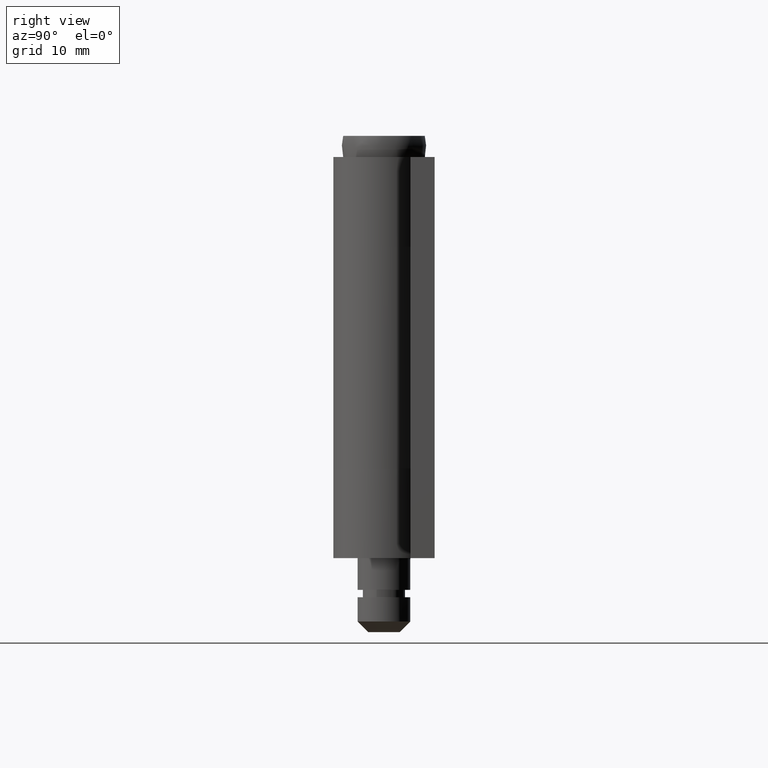
[diagram: clean part render]
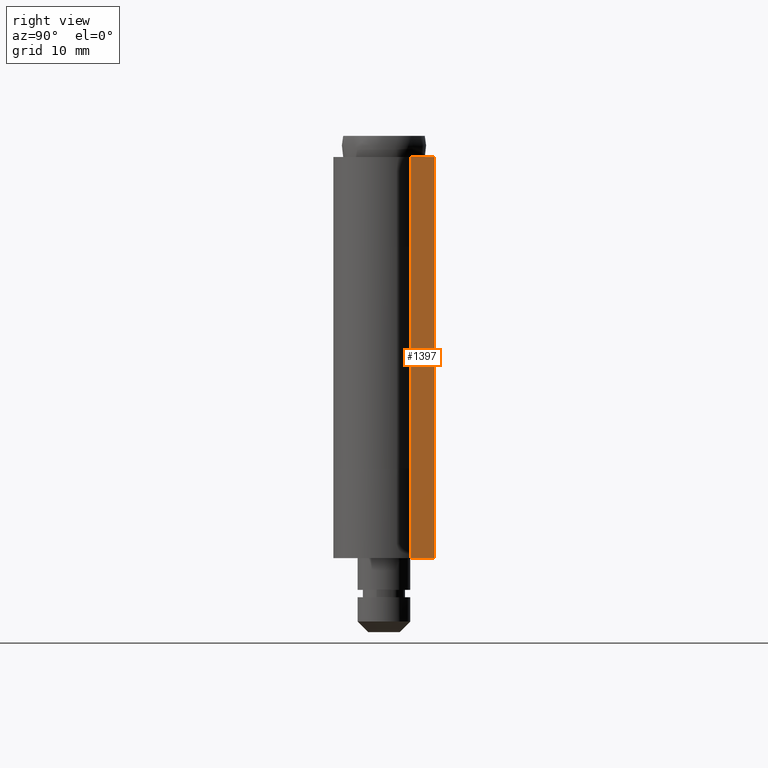
[diagram: same view with one face highlighted and labeled with its STEP entity id]
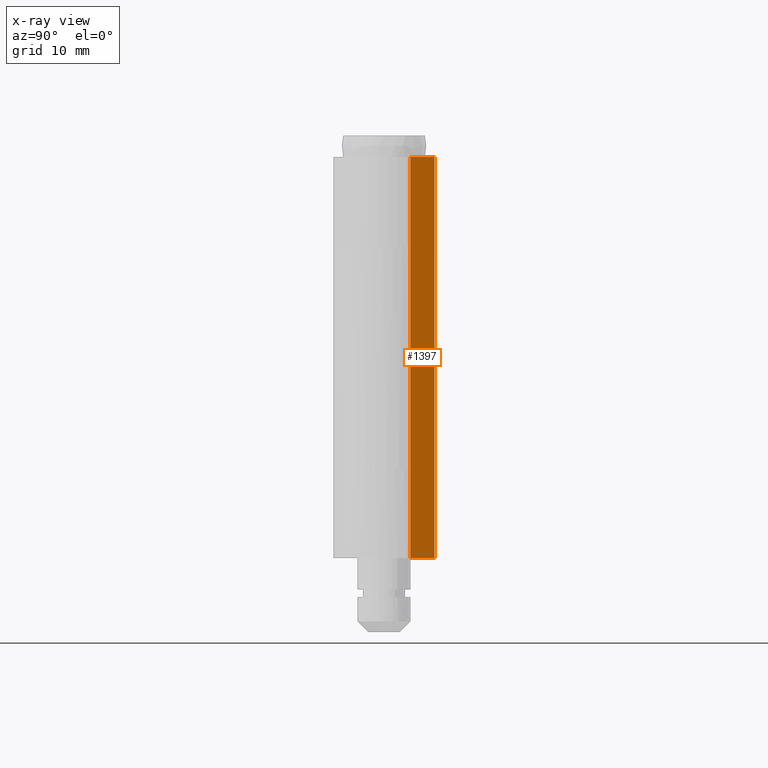
[diagram: x-ray of the same camera — body ghosted, the highlighted face saturated]
A machine part, right view. The second image highlights one B-rep face of the part: STEP entity #1397.
The next image is the same camera in x-ray: the body ghosted, the highlighted face saturated — about 0% of this face is hidden behind the body in this view.
In plain terms, the highlighted face is a freeform B-spline surface patch.
Its self-contained STEP definition (entity closure, byte-faithful):
#1210=CARTESIAN_POINT('',(20.0,4.799999000000000,0.0));
#1211=VERTEX_POINT('',#1210);
#1217=CARTESIAN_POINT('',(20.0,2.500000000000000,0.0));
#1218=VERTEX_POINT('',#1217);
#1219=CARTESIAN_POINT('',(20.0,2.500000000000000,0.0));
#1220=CARTESIAN_POINT('',(20.0,4.799999000000000,0.0));
#1221=QUASI_UNIFORM_CURVE('',1,(#1219,#1220),.UNSPECIFIED.,.F.,.U.);
#1222=EDGE_CURVE('',#1218,#1211,#1221,.T.);
#1237=CARTESIAN_POINT('',(20.0,4.799999000000000,38.0));
#1238=VERTEX_POINT('',#1237);
#1245=CARTESIAN_POINT('',(20.0,2.500000000000000,38.0));
#1246=VERTEX_POINT('',#1245);
#1252=CARTESIAN_POINT('',(20.0,2.500000000000000,38.0));
#1253=CARTESIAN_POINT('',(20.0,4.799999000000000,38.0));
#1254=QUASI_UNIFORM_CURVE('',1,(#1252,#1253),.UNSPECIFIED.,.F.,.U.);
#1255=EDGE_CURVE('',#1246,#1238,#1254,.T.);
#1268=CARTESIAN_POINT('',(20.0,2.500000000000000,38.0));
#1269=CARTESIAN_POINT('',(20.0,2.500000000000000,0.0));
#1270=QUASI_UNIFORM_CURVE('',1,(#1268,#1269),.UNSPECIFIED.,.F.,.U.);
#1271=EDGE_CURVE('',#1246,#1218,#1270,.T.);
#1378=CARTESIAN_POINT('',(20.0,4.799999000000000,38.0));
#1379=CARTESIAN_POINT('',(20.0,4.799999000000000,0.0));
#1380=QUASI_UNIFORM_CURVE('',1,(#1378,#1379),.UNSPECIFIED.,.F.,.U.);
#1381=EDGE_CURVE('',#1238,#1211,#1380,.T.);
#1386=CARTESIAN_POINT('',(20.0,2.385115046190632,-1.898099926348628));
#1387=CARTESIAN_POINT('',(20.0,2.385115046190632,39.898100945588048));
#1388=CARTESIAN_POINT('',(20.0,4.914884180008896,-1.898099926348628));
#1389=CARTESIAN_POINT('',(20.0,4.914884180008896,39.898100945588048));
#1390=B_SPLINE_SURFACE_WITH_KNOTS('',1,1,((#1386,#1388),(#1387,#1389)),.UNSPECIFIED.,.F.,.F.,.U.,(2,2),(2,2),(0.0,41.796200871936684),(0.0,2.529769133818264),.UNSPECIFIED.);
#1391=ORIENTED_EDGE('',*,*,#1222,.T.);
#1392=ORIENTED_EDGE('',*,*,#1381,.F.);
#1393=ORIENTED_EDGE('',*,*,#1255,.F.);
#1394=ORIENTED_EDGE('',*,*,#1271,.T.);
#1395=EDGE_LOOP('',(#1391,#1392,#1393,#1394));
#1396=FACE_OUTER_BOUND('',#1395,.T.);
#1397=ADVANCED_FACE('',(#1396),#1390,.F.);